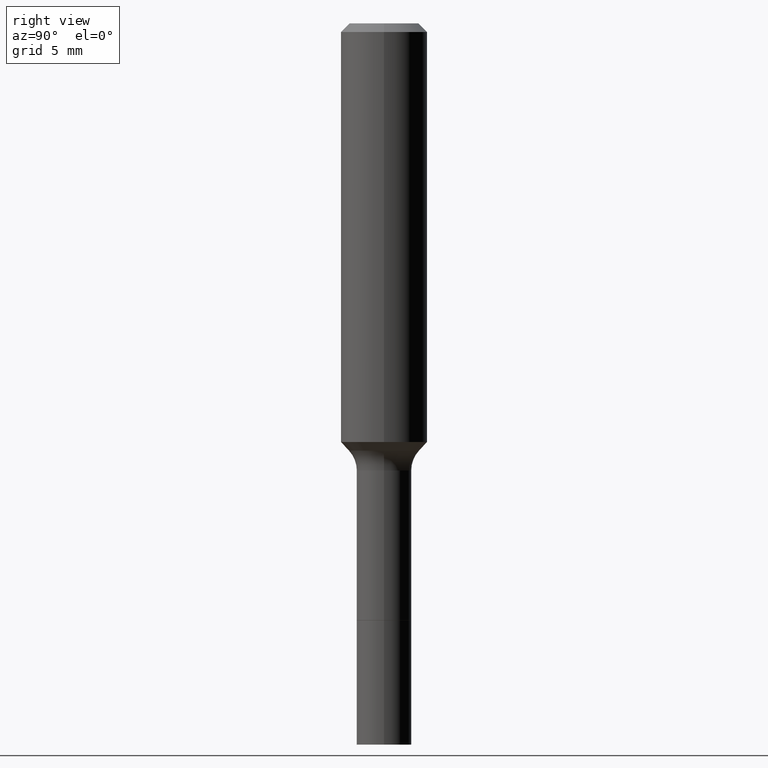
[diagram: clean part render]
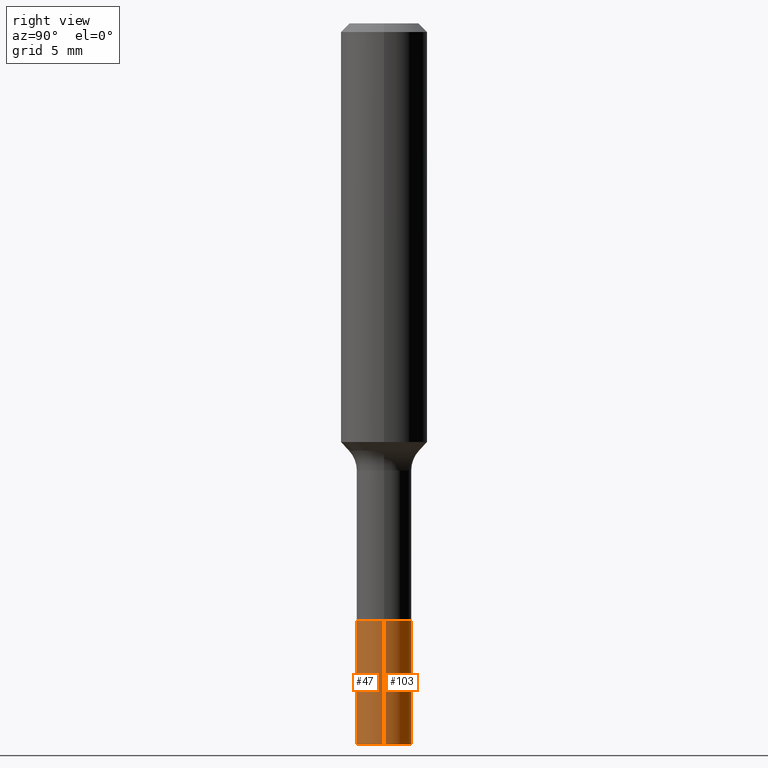
[diagram: same view with one multi-face feature highlighted, each face labeled with its STEP entity id]
A machine part, right view. The highlighted faces form ONE feature: a constant-radius fillet chain: 2 tangent blend faces with common blend radius 1.8999 mm. The faces share edges in the B-rep.
Their STEP definitions:
[1] entity #47 (Cylinder):
#3 = VERTEX_POINT ( 'NONE', #324 ) ;
#5 = EDGE_CURVE ( 'NONE', #3, #358, #87, .T. ) ;
#25 = EDGE_LOOP ( 'NONE', ( #473, #294, #454, #61 ) ) ;
#27 = CARTESIAN_POINT ( 'NONE',  ( 0.07480000000000000537, -6.211694449935839334E-15, -1.629500000000000171 ) ) ;
#37 = VERTEX_POINT ( 'NONE', #245 ) ;
#47 = ADVANCED_FACE ( 'NONE', ( #363 ), #174, .T. ) ;
#48 = EDGE_CURVE ( 'NONE', #56, #37, #309, .T. ) ;
#56 = VERTEX_POINT ( 'NONE', #62 ) ;
#61 = ORIENTED_EDGE ( 'NONE', *, *, #5, .F. ) ;
#62 = CARTESIAN_POINT ( 'NONE',  ( -0.07480000000000013027, -5.749688962230263552E-15, -1.968500000000000139 ) ) ;
#86 = AXIS2_PLACEMENT_3D ( 'NONE', #417, #256, #189 ) ;
#87 = CIRCLE ( 'NONE', #318, 0.07480000000000000537 ) ;
#106 = LINE ( 'NONE', #371, #352 ) ;
#121 = DIRECTION ( 'NONE',  ( -2.445468806185136877E-29, 3.491481338843145188E-15, 1.000000000000000000 ) ) ;
#125 = EDGE_CURVE ( 'NONE', #37, #358, #106, .T. ) ;
#129 = DIRECTION ( 'NONE',  ( 1.000000000000000000, -6.982962677686261977E-15, 0.000000000000000000 ) ) ;
#170 = VECTOR ( 'NONE', #121, 39.37007874015748143 ) ;
#174 = CYLINDRICAL_SURFACE ( 'NONE', #207, 0.07480000000000006088 ) ;
#189 = DIRECTION ( 'NONE',  ( 1.000000000000000000, -6.982962677686264344E-15, 0.000000000000000000 ) ) ;
#207 = AXIS2_PLACEMENT_3D ( 'NONE', #374, #455, #413 ) ;
#209 = DIRECTION ( 'NONE',  ( -2.445468806185136597E-29, 3.491481338843145583E-15, 1.000000000000000000 ) ) ;
#245 = CARTESIAN_POINT ( 'NONE',  ( 0.07480000000000011640, -7.395306623803666085E-15, -1.968500000000000139 ) ) ;
#256 = DIRECTION ( 'NONE',  ( -2.445468806185136597E-29, 3.491481338843145583E-15, 1.000000000000000000 ) ) ;
#294 = ORIENTED_EDGE ( 'NONE', *, *, #48, .T. ) ;
#309 = CIRCLE ( 'NONE', #86, 0.07480000000000011640 ) ;
#315 = LINE ( 'NONE', #475, #170 ) ;
#318 = AXIS2_PLACEMENT_3D ( 'NONE', #480, #209, #129 ) ;
#324 = CARTESIAN_POINT ( 'NONE',  ( -0.07480000000000000537, -5.749688962230264340E-15, -1.629500000000000171 ) ) ;
#332 = DIRECTION ( 'NONE',  ( -2.445468806185136877E-29, 3.491481338843145188E-15, 1.000000000000000000 ) ) ;
#352 = VECTOR ( 'NONE', #332, 39.37007874015748143 ) ;
#358 = VERTEX_POINT ( 'NONE', #27 ) ;
#363 = FACE_OUTER_BOUND ( 'NONE', #25, .T. ) ;
#371 = CARTESIAN_POINT ( 'NONE',  ( 0.07480000000000006088, -6.211694449935840123E-15, -1.629500000000000171 ) ) ;
#374 = CARTESIAN_POINT ( 'NONE',  ( 3.984891419678680501E-29, -5.689368841644906534E-15, -1.629500000000000171 ) ) ;
#381 = EDGE_CURVE ( 'NONE', #56, #3, #315, .T. ) ;
#413 = DIRECTION ( 'NONE',  ( 1.000000000000000000, -6.982962677686269866E-15, 0.000000000000000000 ) ) ;
#417 = CARTESIAN_POINT ( 'NONE',  ( 4.813905344975441835E-29, -6.872981015512731707E-15, -1.968500000000000139 ) ) ;
#454 = ORIENTED_EDGE ( 'NONE', *, *, #125, .T. ) ;
#455 = DIRECTION ( 'NONE',  ( -2.445468806185136597E-29, 3.491481338843145583E-15, 1.000000000000000000 ) ) ;
#473 = ORIENTED_EDGE ( 'NONE', *, *, #381, .F. ) ;
#475 = CARTESIAN_POINT ( 'NONE',  ( -0.07480000000000006088, -5.157882875296350965E-15, -1.629500000000000171 ) ) ;
#480 = CARTESIAN_POINT ( 'NONE',  ( 3.984891419678680501E-29, -5.689368841644906534E-15, -1.629500000000000171 ) ) ;
[2] entity #103 (Cylinder):
#3 = VERTEX_POINT ( 'NONE', #324 ) ;
#12 = CYLINDRICAL_SURFACE ( 'NONE', #508, 0.07480000000000006088 ) ;
#23 = CARTESIAN_POINT ( 'NONE',  ( 3.984891419678680501E-29, -5.689368841644906534E-15, -1.629500000000000171 ) ) ;
#27 = CARTESIAN_POINT ( 'NONE',  ( 0.07480000000000000537, -6.211694449935839334E-15, -1.629500000000000171 ) ) ;
#37 = VERTEX_POINT ( 'NONE', #245 ) ;
#40 = EDGE_CURVE ( 'NONE', #37, #56, #410, .T. ) ;
#56 = VERTEX_POINT ( 'NONE', #62 ) ;
#62 = CARTESIAN_POINT ( 'NONE',  ( -0.07480000000000013027, -5.749688962230263552E-15, -1.968500000000000139 ) ) ;
#64 = FACE_OUTER_BOUND ( 'NONE', #181, .T. ) ;
#103 = ADVANCED_FACE ( 'NONE', ( #64 ), #12, .T. ) ;
#106 = LINE ( 'NONE', #371, #352 ) ;
#121 = DIRECTION ( 'NONE',  ( -2.445468806185136877E-29, 3.491481338843145188E-15, 1.000000000000000000 ) ) ;
#125 = EDGE_CURVE ( 'NONE', #37, #358, #106, .T. ) ;
#170 = VECTOR ( 'NONE', #121, 39.37007874015748143 ) ;
#173 = DIRECTION ( 'NONE',  ( -2.445468806185136597E-29, 3.491481338843145583E-15, 1.000000000000000000 ) ) ;
#180 = CARTESIAN_POINT ( 'NONE',  ( 3.984891419678680501E-29, -5.689368841644906534E-15, -1.629500000000000171 ) ) ;
#181 = EDGE_LOOP ( 'NONE', ( #346, #188, #512, #402 ) ) ;
#186 = AXIS2_PLACEMENT_3D ( 'NONE', #23, #238, #191 ) ;
#188 = ORIENTED_EDGE ( 'NONE', *, *, #381, .T. ) ;
#191 = DIRECTION ( 'NONE',  ( 1.000000000000000000, -6.982962677686261977E-15, 0.000000000000000000 ) ) ;
#238 = DIRECTION ( 'NONE',  ( -2.445468806185136597E-29, 3.491481338843145583E-15, 1.000000000000000000 ) ) ;
#245 = CARTESIAN_POINT ( 'NONE',  ( 0.07480000000000011640, -7.395306623803666085E-15, -1.968500000000000139 ) ) ;
#251 = CARTESIAN_POINT ( 'NONE',  ( 4.813905344975441835E-29, -6.872981015512731707E-15, -1.968500000000000139 ) ) ;
#315 = LINE ( 'NONE', #475, #170 ) ;
#321 = DIRECTION ( 'NONE',  ( 1.000000000000000000, -6.982962677686264344E-15, 0.000000000000000000 ) ) ;
#324 = CARTESIAN_POINT ( 'NONE',  ( -0.07480000000000000537, -5.749688962230264340E-15, -1.629500000000000171 ) ) ;
#332 = DIRECTION ( 'NONE',  ( -2.445468806185136877E-29, 3.491481338843145188E-15, 1.000000000000000000 ) ) ;
#335 = DIRECTION ( 'NONE',  ( -2.445468806185136597E-29, 3.491481338843145583E-15, 1.000000000000000000 ) ) ;
#338 = EDGE_CURVE ( 'NONE', #358, #3, #409, .T. ) ;
#346 = ORIENTED_EDGE ( 'NONE', *, *, #40, .T. ) ;
#352 = VECTOR ( 'NONE', #332, 39.37007874015748143 ) ;
#358 = VERTEX_POINT ( 'NONE', #27 ) ;
#371 = CARTESIAN_POINT ( 'NONE',  ( 0.07480000000000006088, -6.211694449935840123E-15, -1.629500000000000171 ) ) ;
#381 = EDGE_CURVE ( 'NONE', #56, #3, #315, .T. ) ;
#402 = ORIENTED_EDGE ( 'NONE', *, *, #125, .F. ) ;
#409 = CIRCLE ( 'NONE', #186, 0.07480000000000000537 ) ;
#410 = CIRCLE ( 'NONE', #478, 0.07480000000000011640 ) ;
#457 = DIRECTION ( 'NONE',  ( 1.000000000000000000, -6.982962677686269866E-15, 0.000000000000000000 ) ) ;
#475 = CARTESIAN_POINT ( 'NONE',  ( -0.07480000000000006088, -5.157882875296350965E-15, -1.629500000000000171 ) ) ;
#478 = AXIS2_PLACEMENT_3D ( 'NONE', #251, #173, #321 ) ;
#508 = AXIS2_PLACEMENT_3D ( 'NONE', #180, #335, #457 ) ;
#512 = ORIENTED_EDGE ( 'NONE', *, *, #338, .F. ) ;